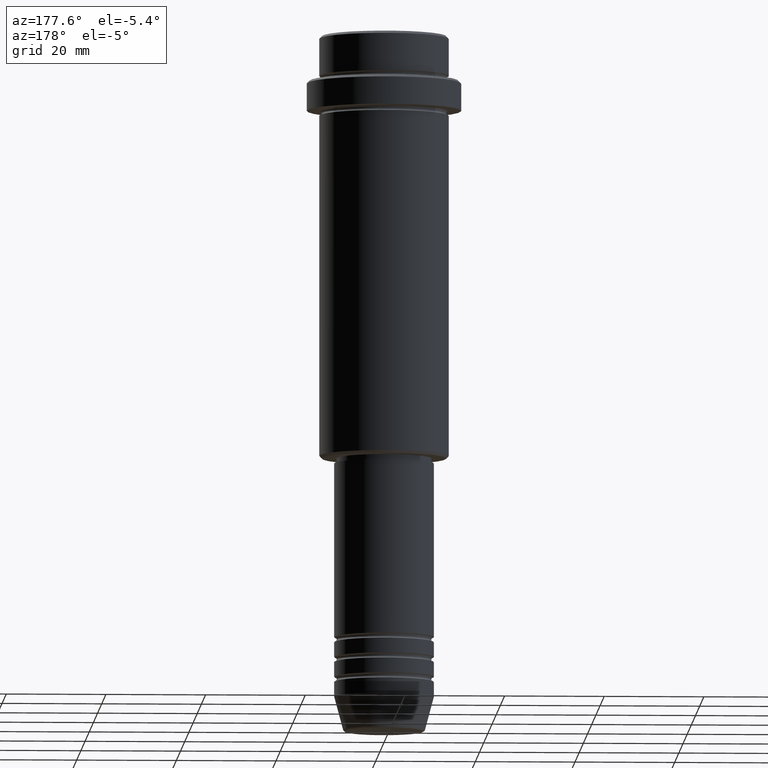
[diagram: clean part render]
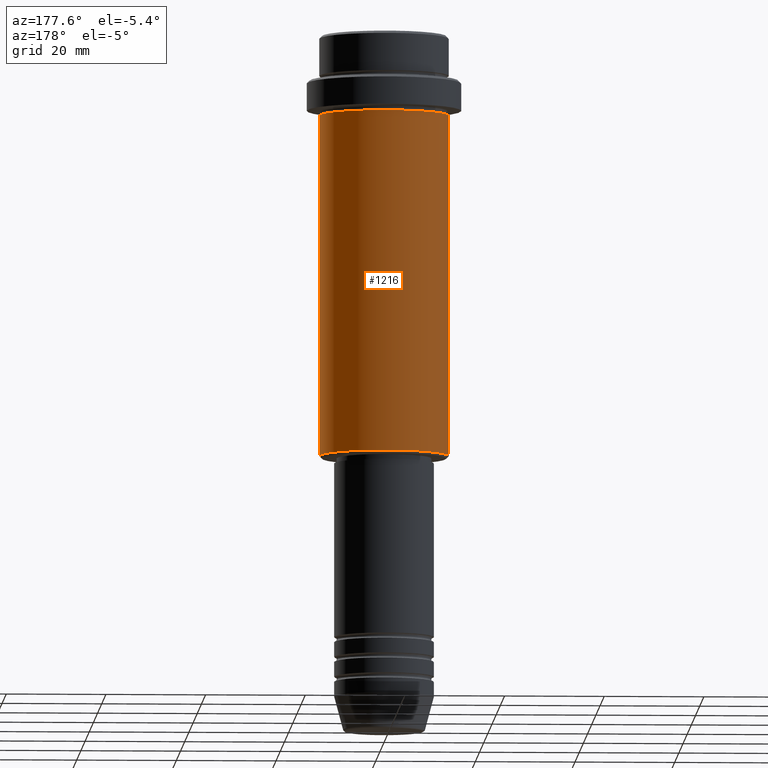
[diagram: same view with one face highlighted and labeled with its STEP entity id]
A machine part, auxiliary view. The second image highlights one B-rep face of the part: STEP entity #1216.
In plain terms, the highlighted cylindrical surface (partial cylindrical patch) has radius 13 mm, axis along (-0, -0, 1).
Its self-contained STEP definition (entity closure, byte-faithful):
#12 = LINE ( 'NONE', #364, #1035 ) ;
#209 = EDGE_CURVE ( 'NONE', #973, #1359, #1156, .T. ) ;
#235 = CARTESIAN_POINT ( 'NONE',  ( -13.00000000000000000, 1.592040838891559095E-15, -84.50000000000000000 ) ) ;
#311 = DIRECTION ( 'NONE',  ( -0.000000000000000000, -0.000000000000000000, 1.000000000000000000 ) ) ;
#334 = DIRECTION ( 'NONE',  ( 1.000000000000000000, 0.000000000000000000, 0.000000000000000000 ) ) ;
#364 = CARTESIAN_POINT ( 'NONE',  ( 13.00000000000000000, 0.000000000000000000, 0.000000000000000000 ) ) ;
#388 = EDGE_CURVE ( 'NONE', #973, #700, #12, .T. ) ;
#400 = CARTESIAN_POINT ( 'NONE',  ( 0.000000000000000000, 0.000000000000000000, -84.50000000000000000 ) ) ;
#534 = CARTESIAN_POINT ( 'NONE',  ( -13.00000000000000000, 1.592040838891559095E-15, -16.00000000000000000 ) ) ;
#564 = ORIENTED_EDGE ( 'NONE', *, *, #388, .F. ) ;
#567 = LINE ( 'NONE', #938, #569 ) ;
#569 = VECTOR ( 'NONE', #1153, 1000.000000000000000 ) ;
#610 = DIRECTION ( 'NONE',  ( -1.000000000000000000, 0.000000000000000000, 0.000000000000000000 ) ) ;
#614 = ORIENTED_EDGE ( 'NONE', *, *, #927, .T. ) ;
#650 = CARTESIAN_POINT ( 'NONE',  ( 13.00000000000000000, 0.000000000000000000, -16.00000000000000000 ) ) ;
#700 = VERTEX_POINT ( 'NONE', #650 ) ;
#727 = DIRECTION ( 'NONE',  ( 1.000000000000000000, 0.000000000000000000, 0.000000000000000000 ) ) ;
#734 = DIRECTION ( 'NONE',  ( -0.000000000000000000, -0.000000000000000000, 1.000000000000000000 ) ) ;
#783 = FACE_OUTER_BOUND ( 'NONE', #1192, .T. ) ;
#866 = AXIS2_PLACEMENT_3D ( 'NONE', #1294, #970, #727 ) ;
#927 = EDGE_CURVE ( 'NONE', #1359, #1262, #567, .T. ) ;
#938 = CARTESIAN_POINT ( 'NONE',  ( -13.00000000000000000, 1.592040838891559095E-15, 0.000000000000000000 ) ) ;
#952 = ORIENTED_EDGE ( 'NONE', *, *, #209, .T. ) ;
#970 = DIRECTION ( 'NONE',  ( -0.000000000000000000, -0.000000000000000000, 1.000000000000000000 ) ) ;
#973 = VERTEX_POINT ( 'NONE', #1056 ) ;
#983 = CYLINDRICAL_SURFACE ( 'NONE', #1332, 13.00000000000000000 ) ;
#1011 = DIRECTION ( 'NONE',  ( -0.000000000000000000, -0.000000000000000000, 1.000000000000000000 ) ) ;
#1035 = VECTOR ( 'NONE', #1011, 1000.000000000000000 ) ;
#1052 = CIRCLE ( 'NONE', #866, 13.00000000000000000 ) ;
#1056 = CARTESIAN_POINT ( 'NONE',  ( 13.00000000000000000, 0.000000000000000000, -84.50000000000000000 ) ) ;
#1106 = CARTESIAN_POINT ( 'NONE',  ( 0.000000000000000000, 0.000000000000000000, 0.000000000000000000 ) ) ;
#1146 = EDGE_CURVE ( 'NONE', #700, #1262, #1052, .T. ) ;
#1153 = DIRECTION ( 'NONE',  ( -0.000000000000000000, -0.000000000000000000, 1.000000000000000000 ) ) ;
#1156 = CIRCLE ( 'NONE', #1326, 13.00000000000000000 ) ;
#1192 = EDGE_LOOP ( 'NONE', ( #952, #614, #1333, #564 ) ) ;
#1216 = ADVANCED_FACE ( 'NONE', ( #783 ), #983, .T. ) ;
#1262 = VERTEX_POINT ( 'NONE', #534 ) ;
#1294 = CARTESIAN_POINT ( 'NONE',  ( 0.000000000000000000, 0.000000000000000000, -16.00000000000000000 ) ) ;
#1326 = AXIS2_PLACEMENT_3D ( 'NONE', #400, #734, #610 ) ;
#1332 = AXIS2_PLACEMENT_3D ( 'NONE', #1106, #311, #334 ) ;
#1333 = ORIENTED_EDGE ( 'NONE', *, *, #1146, .F. ) ;
#1359 = VERTEX_POINT ( 'NONE', #235 ) ;